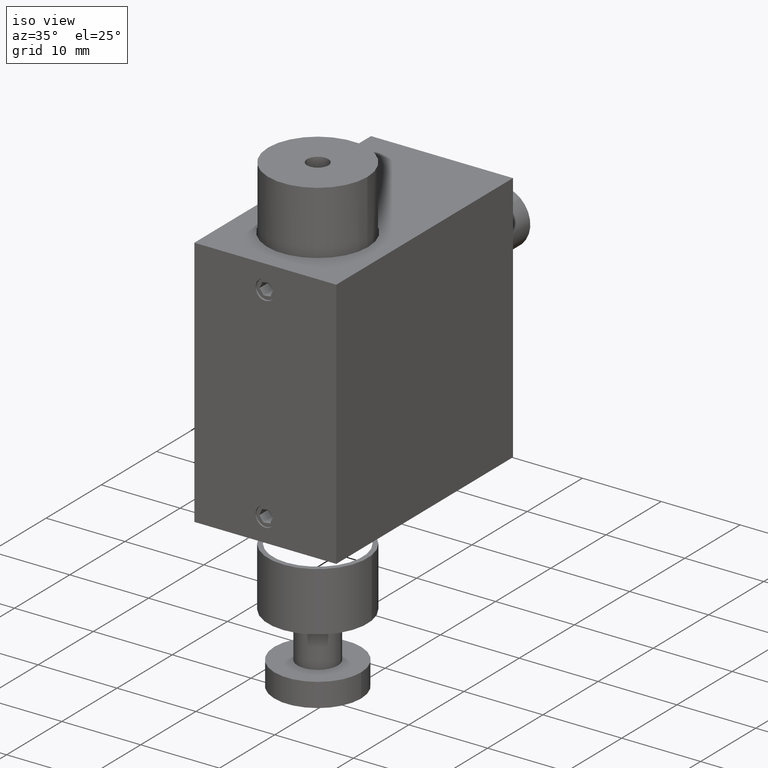
[diagram: clean part render]
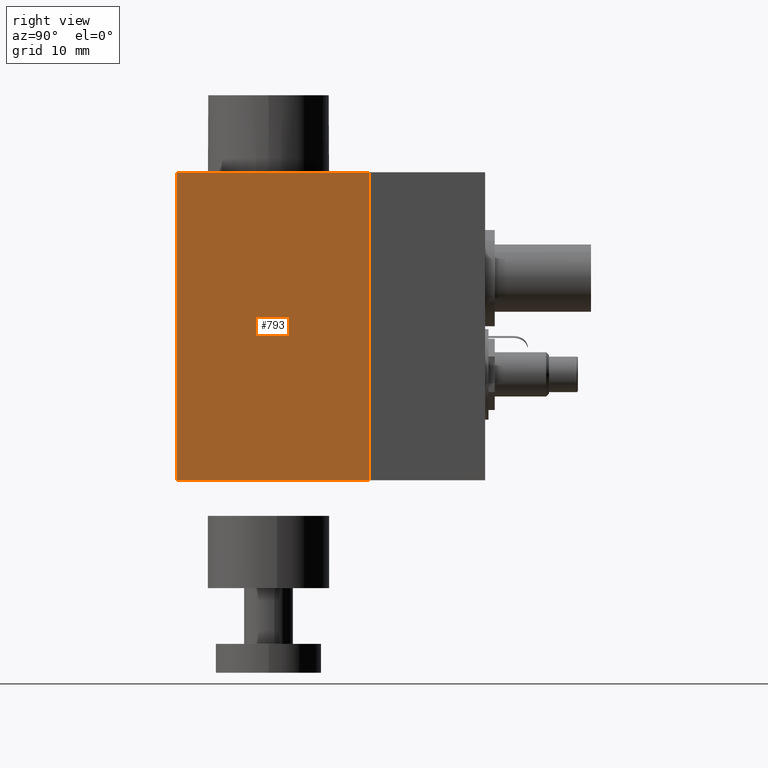
[diagram: tour spotlight — one face highlighted and labeled with its STEP entity id]
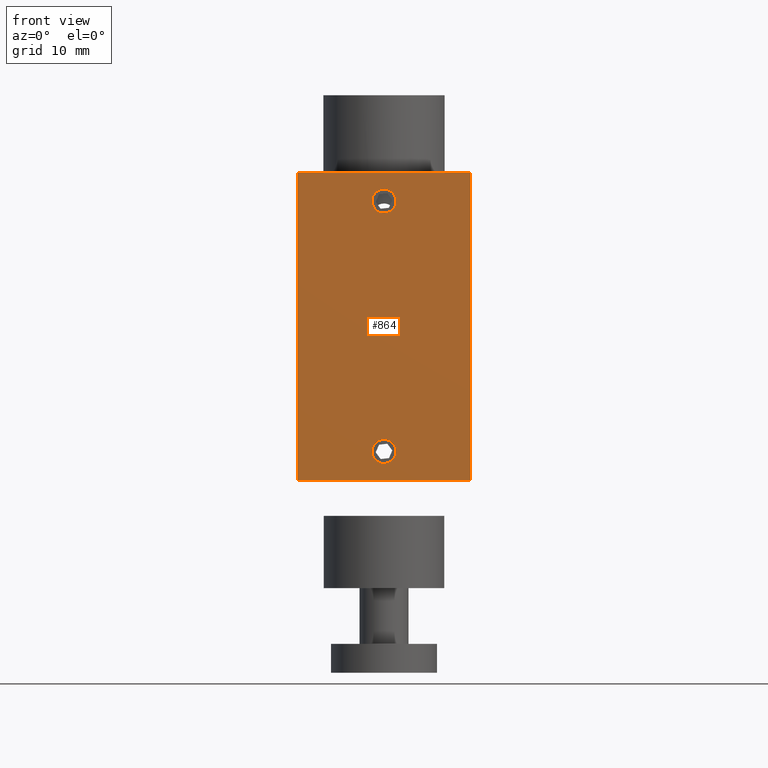
[diagram: tour spotlight — one face highlighted and labeled with its STEP entity id]
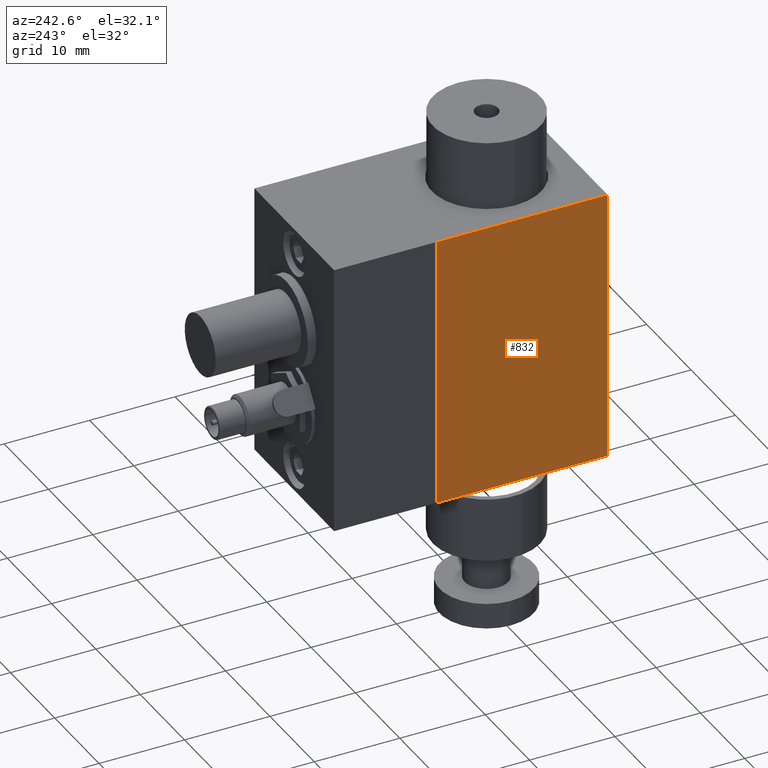
[diagram: tour spotlight — one face highlighted and labeled with its STEP entity id]
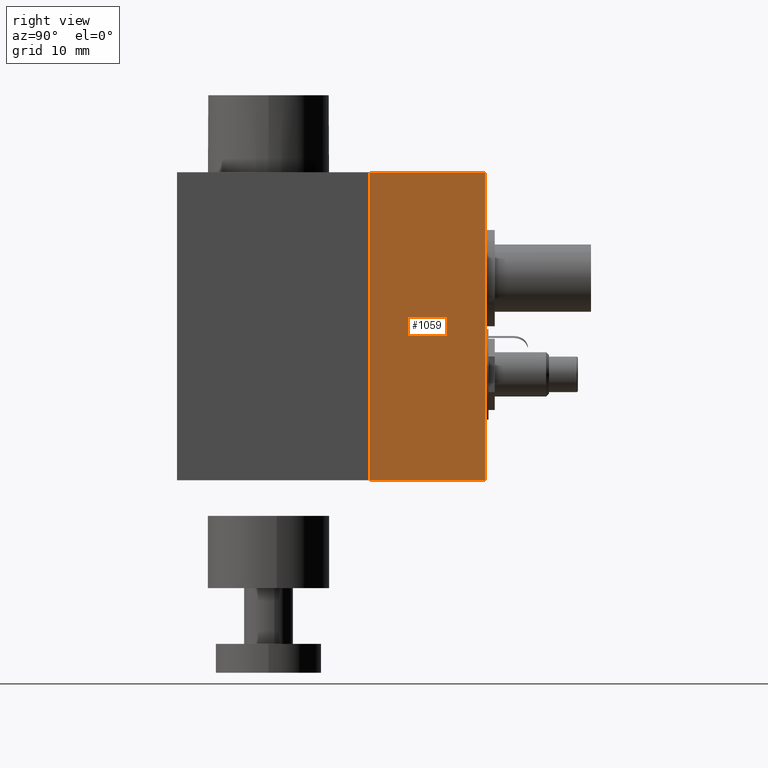
[diagram: tour spotlight — one face highlighted and labeled with its STEP entity id]
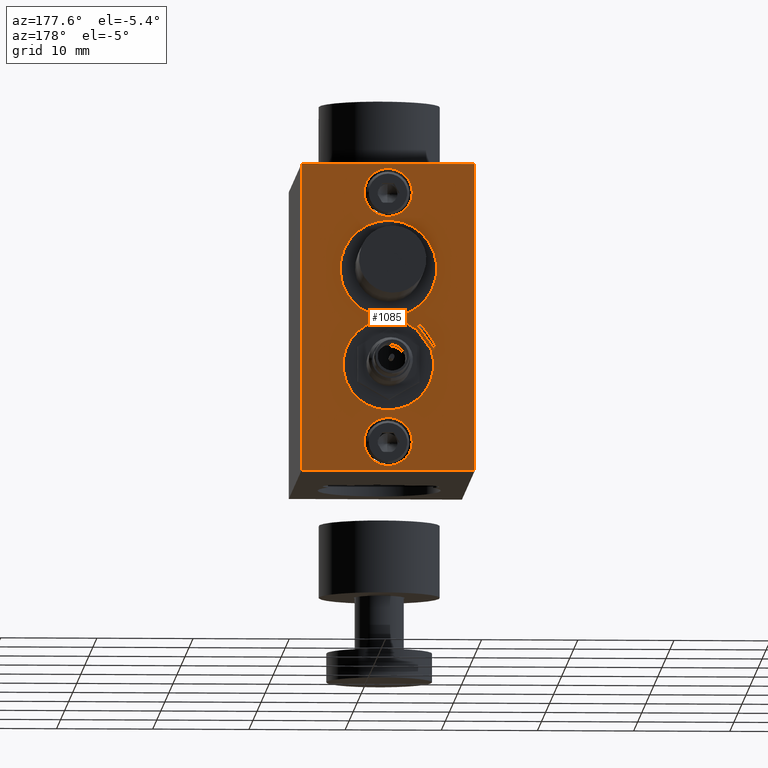
[diagram: tour spotlight — one face highlighted and labeled with its STEP entity id]
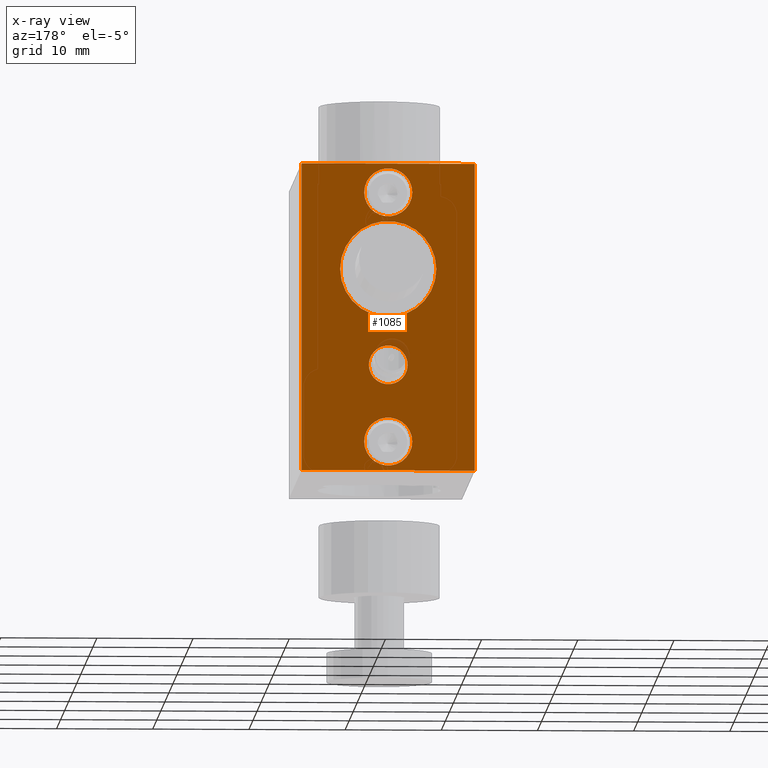
[diagram: x-ray of the same camera — body ghosted, this tour face saturated]
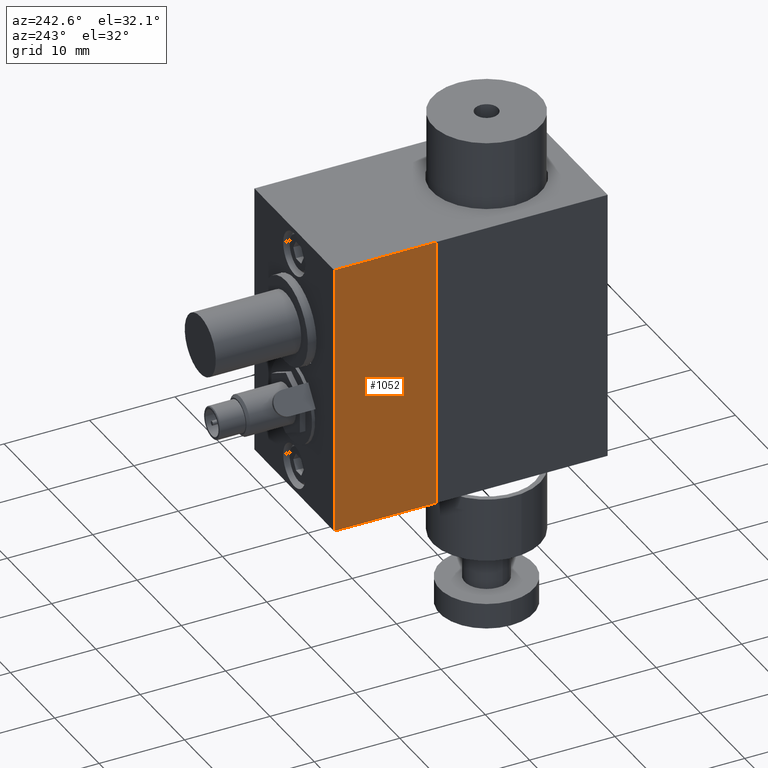
[diagram: tour spotlight — one face highlighted and labeled with its STEP entity id]
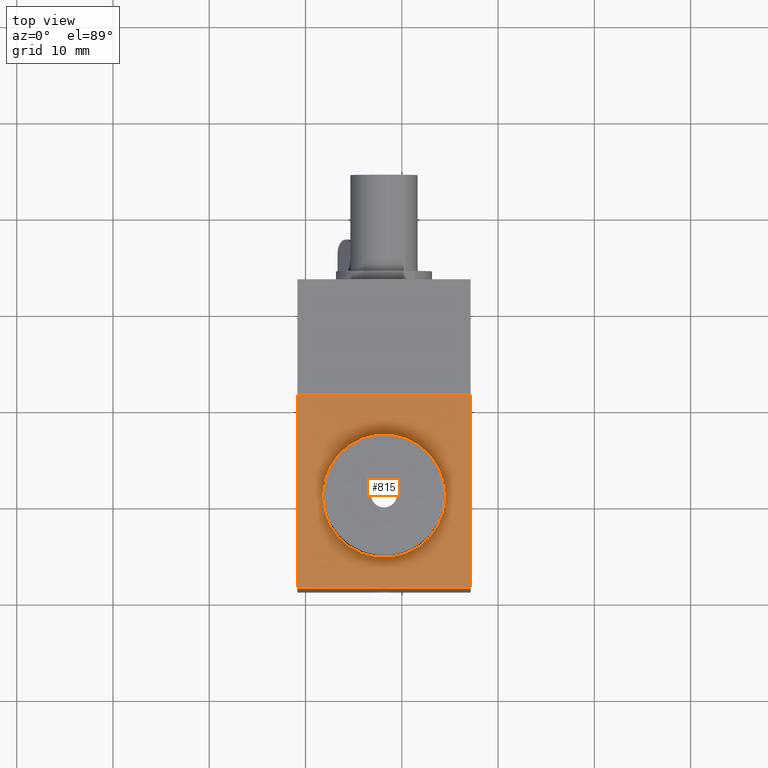
[diagram: tour spotlight — one face highlighted and labeled with its STEP entity id]
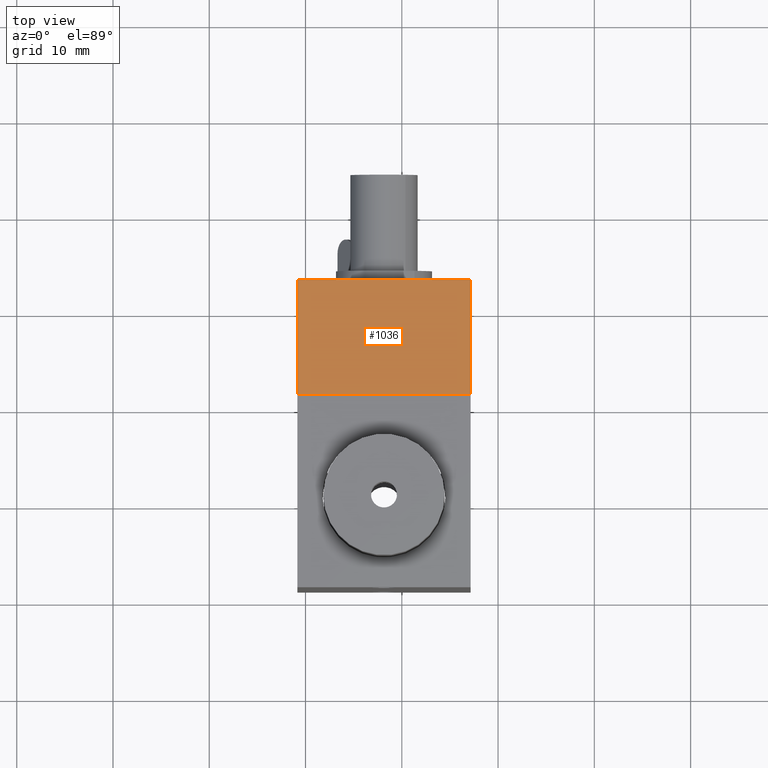
[diagram: tour spotlight — one face highlighted and labeled with its STEP entity id]
A machine part: a face-by-face anatomy tour. The part has 126 B-rep faces; the first image is the clean iso view, then the 8 largest visible faces are spotlighted one at a time (largest first), each with its STEP entity span.

Face 1 — right view, entity #793. In plain terms, the highlighted planar face has unit normal (1, 0, 0).
Definition (entity closure, byte-faithful):
#715 = ORIENTED_EDGE ( 'NONE', *, *, #716, .T. ) ;
#716 = EDGE_CURVE ( 'NONE', #801, #717, #3841, .T. ) ;
#717 = VERTEX_POINT ( 'NONE', #3837 ) ;
#718 = ORIENTED_EDGE ( 'NONE', *, *, #719, .T. ) ;
#719 = EDGE_CURVE ( 'NONE', #717, #798, #3884, .T. ) ;
#793 = ADVANCED_FACE ( 'NONE', ( #4084 ), #4068, .T. ) ;
#794 = EDGE_LOOP ( 'NONE', ( #795, #799, #715, #718 ) ) ;
#795 = ORIENTED_EDGE ( 'NONE', *, *, #796, .F. ) ;
#796 = EDGE_CURVE ( 'NONE', #797, #798, #4063, .T. ) ;
#797 = VERTEX_POINT ( 'NONE', #4059 ) ;
#798 = VERTEX_POINT ( 'NONE', #4058 ) ;
#799 = ORIENTED_EDGE ( 'NONE', *, *, #800, .F. ) ;
#800 = EDGE_CURVE ( 'NONE', #801, #797, #4118, .T. ) ;
#801 = VERTEX_POINT ( 'NONE', #4114 ) ;
#3837 = CARTESIAN_POINT ( 'NONE',  ( 7.151335311572692500, 10.93620178041543200, -39.99999999998499300 ) ) ;
#3838 = DIRECTION ( 'NONE',  ( -3.469446951953614200E-016, 1.000000000000000000, 0.0000000000000000000 ) ) ;
#3839 = VECTOR ( 'NONE', #3838, 1000.000000000000000 ) ;
#3840 = CARTESIAN_POINT ( 'NONE',  ( 7.151335311572692500, 10.93620178041543200, -39.99999999998499300 ) ) ;
#3841 = LINE ( 'NONE', #3840, #3839 ) ;
#3881 = DIRECTION ( 'NONE',  ( 0.0000000000000000000, 0.0000000000000000000, 1.000000000000000000 ) ) ;
#3882 = VECTOR ( 'NONE', #3881, 1000.000000000000000 ) ;
#3883 = CARTESIAN_POINT ( 'NONE',  ( 7.151335311572692500, 10.93620178041543200, -39.99999999998499300 ) ) ;
#3884 = LINE ( 'NONE', #3883, #3882 ) ;
#4058 = CARTESIAN_POINT ( 'NONE',  ( 7.151335311572692500, 10.93620178041543200, -7.999999999984993300 ) ) ;
#4059 = CARTESIAN_POINT ( 'NONE',  ( 7.151335311572699600, -9.063798219584569400, -7.999999999984993300 ) ) ;
#4060 = DIRECTION ( 'NONE',  ( -3.469446951953614200E-016, 1.000000000000000000, 0.0000000000000000000 ) ) ;
#4061 = VECTOR ( 'NONE', #4060, 1000.000000000000000 ) ;
#4062 = CARTESIAN_POINT ( 'NONE',  ( 7.151335311572692500, 10.93620178041543200, -7.999999999984993300 ) ) ;
#4063 = LINE ( 'NONE', #4062, #4061 ) ;
#4064 = DIRECTION ( 'NONE',  ( -3.469446951953614200E-016, 1.000000000000000000, 0.0000000000000000000 ) ) ;
#4065 = DIRECTION ( 'NONE',  ( 1.000000000000000000, 3.469446951953614200E-016, 0.0000000000000000000 ) ) ;
#4066 = CARTESIAN_POINT ( 'NONE',  ( 7.151335311572692500, 10.93620178041543200, -39.99999999998499300 ) ) ;
#4067 = AXIS2_PLACEMENT_3D ( 'NONE', #4066, #4065, #4064 ) ;
#4068 = PLANE ( 'NONE',  #4067 ) ;
#4084 = FACE_OUTER_BOUND ( 'NONE', #794, .T. ) ;
#4114 = CARTESIAN_POINT ( 'NONE',  ( 7.151335311572699600, -9.063798219584569400, -39.99999999998499300 ) ) ;
#4115 = DIRECTION ( 'NONE',  ( 0.0000000000000000000, 0.0000000000000000000, 1.000000000000000000 ) ) ;
#4116 = VECTOR ( 'NONE', #4115, 1000.000000000000000 ) ;
#4117 = CARTESIAN_POINT ( 'NONE',  ( 7.151335311572699600, -9.063798219584569400, -39.99999999998499300 ) ) ;
#4118 = LINE ( 'NONE', #4117, #4116 ) ;

Face 2 — front view, entity #864. In plain terms, the highlighted planar face has unit normal (0, -1, 0).
Definition (entity closure, byte-faithful):
#684 = VERTEX_POINT ( 'NONE', #3747 ) ;
#686 = EDGE_CURVE ( 'NONE', #684, #687, #3746, .T. ) ;
#687 = VERTEX_POINT ( 'NONE', #3741 ) ;
#752 = VERTEX_POINT ( 'NONE', #3932 ) ;
#754 = EDGE_CURVE ( 'NONE', #752, #755, #3931, .T. ) ;
#755 = VERTEX_POINT ( 'NONE', #3926 ) ;
#797 = VERTEX_POINT ( 'NONE', #4059 ) ;
#800 = EDGE_CURVE ( 'NONE', #801, #797, #4118, .T. ) ;
#801 = VERTEX_POINT ( 'NONE', #4114 ) ;
#809 = VERTEX_POINT ( 'NONE', #4108 ) ;
#814 = EDGE_CURVE ( 'NONE', #826, #809, #4102, .T. ) ;
#826 = VERTEX_POINT ( 'NONE', #4122 ) ;
#831 = EDGE_CURVE ( 'NONE', #826, #801, #4171, .T. ) ;
#849 = ORIENTED_EDGE ( 'NONE', *, *, #814, .F. ) ;
#850 = ORIENTED_EDGE ( 'NONE', *, *, #831, .T. ) ;
#851 = ORIENTED_EDGE ( 'NONE', *, *, #800, .T. ) ;
#863 = EDGE_CURVE ( 'NONE', #755, #752, #4281, .T. ) ;
#864 = ADVANCED_FACE ( 'NONE', ( #4276, #4275, #4274 ), #4319, .T. ) ;
#865 = EDGE_LOOP ( 'NONE', ( #866, #868 ) ) ;
#866 = ORIENTED_EDGE ( 'NONE', *, *, #867, .F. ) ;
#867 = EDGE_CURVE ( 'NONE', #687, #684, #4314, .T. ) ;
#868 = ORIENTED_EDGE ( 'NONE', *, *, #686, .F. ) ;
#869 = EDGE_LOOP ( 'NONE', ( #870, #871 ) ) ;
#870 = ORIENTED_EDGE ( 'NONE', *, *, #863, .F. ) ;
#871 = ORIENTED_EDGE ( 'NONE', *, *, #754, .F. ) ;
#872 = EDGE_LOOP ( 'NONE', ( #873, #849, #850, #851 ) ) ;
#873 = ORIENTED_EDGE ( 'NONE', *, *, #878, .F. ) ;
#878 = EDGE_CURVE ( 'NONE', #809, #797, #4309, .T. ) ;
#3741 = CARTESIAN_POINT ( 'NONE',  ( -1.848664688427299500, -9.063798219584571200, -12.24999999998497900 ) ) ;
#3742 = DIRECTION ( 'NONE',  ( 0.0000000000000000000, 0.0000000000000000000, -1.000000000000000000 ) ) ;
#3743 = DIRECTION ( 'NONE',  ( 0.0000000000000000000, -1.000000000000000000, 0.0000000000000000000 ) ) ;
#3744 = CARTESIAN_POINT ( 'NONE',  ( -1.848664688427299500, -9.063798219584571200, -10.99999999998499200 ) ) ;
#3745 = AXIS2_PLACEMENT_3D ( 'NONE', #3744, #3743, #3742 ) ;
#3746 = CIRCLE ( 'NONE', #3745, 1.249999999999987100 ) ;
#3747 = CARTESIAN_POINT ( 'NONE',  ( -1.848664688427299300, -9.063798219584571200, -9.749999999985005800 ) ) ;
#3926 = CARTESIAN_POINT ( 'NONE',  ( -1.848664688427290800, -9.063798219584571200, -38.24999999998497900 ) ) ;
#3927 = DIRECTION ( 'NONE',  ( 0.0000000000000000000, 0.0000000000000000000, -1.000000000000000000 ) ) ;
#3928 = DIRECTION ( 'NONE',  ( 0.0000000000000000000, -1.000000000000000000, 0.0000000000000000000 ) ) ;
#3929 = CARTESIAN_POINT ( 'NONE',  ( -1.848664688427290800, -9.063798219584571200, -36.99999999998498600 ) ) ;
#3930 = AXIS2_PLACEMENT_3D ( 'NONE', #3929, #3928, #3927 ) ;
#3931 = CIRCLE ( 'NONE', #3930, 1.249999999999987100 ) ;
#3932 = CARTESIAN_POINT ( 'NONE',  ( -1.848664688427290600, -9.063798219584571200, -35.74999999998500000 ) ) ;
#4059 = CARTESIAN_POINT ( 'NONE',  ( 7.151335311572699600, -9.063798219584569400, -7.999999999984993300 ) ) ;
#4099 = DIRECTION ( 'NONE',  ( 0.0000000000000000000, 0.0000000000000000000, 1.000000000000000000 ) ) ;
#4100 = VECTOR ( 'NONE', #4099, 1000.000000000000000 ) ;
#4101 = CARTESIAN_POINT ( 'NONE',  ( -10.84866468842730200, -9.063798219584569400, -39.99999999998499300 ) ) ;
#4102 = LINE ( 'NONE', #4101, #4100 ) ;
#4108 = CARTESIAN_POINT ( 'NONE',  ( -10.84866468842730200, -9.063798219584569400, -7.999999999984993300 ) ) ;
#4114 = CARTESIAN_POINT ( 'NONE',  ( 7.151335311572699600, -9.063798219584569400, -39.99999999998499300 ) ) ;
#4115 = DIRECTION ( 'NONE',  ( 0.0000000000000000000, 0.0000000000000000000, 1.000000000000000000 ) ) ;
#4116 = VECTOR ( 'NONE', #4115, 1000.000000000000000 ) ;
#4117 = CARTESIAN_POINT ( 'NONE',  ( 7.151335311572699600, -9.063798219584569400, -39.99999999998499300 ) ) ;
#4118 = LINE ( 'NONE', #4117, #4116 ) ;
#4122 = CARTESIAN_POINT ( 'NONE',  ( -10.84866468842730200, -9.063798219584569400, -39.99999999998499300 ) ) ;
#4168 = DIRECTION ( 'NONE',  ( 1.000000000000000000, 0.0000000000000000000, 0.0000000000000000000 ) ) ;
#4169 = VECTOR ( 'NONE', #4168, 1000.000000000000000 ) ;
#4170 = CARTESIAN_POINT ( 'NONE',  ( -10.84866468842730200, -9.063798219584569400, -39.99999999998499300 ) ) ;
#4171 = LINE ( 'NONE', #4170, #4169 ) ;
#4274 = FACE_OUTER_BOUND ( 'NONE', #872, .T. ) ;
#4275 = FACE_BOUND ( 'NONE', #869, .T. ) ;
#4276 = FACE_BOUND ( 'NONE', #865, .T. ) ;
#4277 = DIRECTION ( 'NONE',  ( 0.0000000000000000000, 0.0000000000000000000, -1.000000000000000000 ) ) ;
#4278 = DIRECTION ( 'NONE',  ( 0.0000000000000000000, -1.000000000000000000, 0.0000000000000000000 ) ) ;
#4279 = CARTESIAN_POINT ( 'NONE',  ( -1.848664688427290800, -9.063798219584571200, -36.99999999998498600 ) ) ;
#4280 = AXIS2_PLACEMENT_3D ( 'NONE', #4279, #4278, #4277 ) ;
#4281 = CIRCLE ( 'NONE', #4280, 1.249999999999987100 ) ;
#4306 = DIRECTION ( 'NONE',  ( 1.000000000000000000, 0.0000000000000000000, 0.0000000000000000000 ) ) ;
#4307 = VECTOR ( 'NONE', #4306, 1000.000000000000000 ) ;
#4308 = CARTESIAN_POINT ( 'NONE',  ( -10.84866468842730200, -9.063798219584569400, -7.999999999984993300 ) ) ;
#4309 = LINE ( 'NONE', #4308, #4307 ) ;
#4310 = DIRECTION ( 'NONE',  ( 0.0000000000000000000, 0.0000000000000000000, -1.000000000000000000 ) ) ;
#4311 = DIRECTION ( 'NONE',  ( 0.0000000000000000000, -1.000000000000000000, 0.0000000000000000000 ) ) ;
#4312 = CARTESIAN_POINT ( 'NONE',  ( -1.848664688427299500, -9.063798219584571200, -10.99999999998499200 ) ) ;
#4313 = AXIS2_PLACEMENT_3D ( 'NONE', #4312, #4311, #4310 ) ;
#4314 = CIRCLE ( 'NONE', #4313, 1.249999999999987100 ) ;
#4315 = DIRECTION ( 'NONE',  ( 0.0000000000000000000, 0.0000000000000000000, -1.000000000000000000 ) ) ;
#4316 = DIRECTION ( 'NONE',  ( 0.0000000000000000000, -1.000000000000000000, 0.0000000000000000000 ) ) ;
#4317 = CARTESIAN_POINT ( 'NONE',  ( -10.84866468842730200, -9.063798219584569400, -39.99999999998499300 ) ) ;
#4318 = AXIS2_PLACEMENT_3D ( 'NONE', #4317, #4316, #4315 ) ;
#4319 = PLANE ( 'NONE',  #4318 ) ;

Face 3 — auxiliary view, entity #832. In plain terms, the highlighted planar face has unit normal (-1, -0, 0).
Definition (entity closure, byte-faithful):
#806 = ORIENTED_EDGE ( 'NONE', *, *, #807, .F. ) ;
#807 = EDGE_CURVE ( 'NONE', #808, #809, #4113, .T. ) ;
#808 = VERTEX_POINT ( 'NONE', #4109 ) ;
#809 = VERTEX_POINT ( 'NONE', #4108 ) ;
#810 = ORIENTED_EDGE ( 'NONE', *, *, #811, .F. ) ;
#811 = EDGE_CURVE ( 'NONE', #825, #808, #4107, .T. ) ;
#812 = ORIENTED_EDGE ( 'NONE', *, *, #824, .T. ) ;
#813 = ORIENTED_EDGE ( 'NONE', *, *, #814, .T. ) ;
#814 = EDGE_CURVE ( 'NONE', #826, #809, #4102, .T. ) ;
#824 = EDGE_CURVE ( 'NONE', #825, #826, #4127, .T. ) ;
#825 = VERTEX_POINT ( 'NONE', #4123 ) ;
#826 = VERTEX_POINT ( 'NONE', #4122 ) ;
#832 = ADVANCED_FACE ( 'NONE', ( #4167 ), #4152, .T. ) ;
#833 = EDGE_LOOP ( 'NONE', ( #806, #810, #812, #813 ) ) ;
#4099 = DIRECTION ( 'NONE',  ( 0.0000000000000000000, 0.0000000000000000000, 1.000000000000000000 ) ) ;
#4100 = VECTOR ( 'NONE', #4099, 1000.000000000000000 ) ;
#4101 = CARTESIAN_POINT ( 'NONE',  ( -10.84866468842730200, -9.063798219584569400, -39.99999999998499300 ) ) ;
#4102 = LINE ( 'NONE', #4101, #4100 ) ;
#4104 = DIRECTION ( 'NONE',  ( 0.0000000000000000000, 0.0000000000000000000, 1.000000000000000000 ) ) ;
#4105 = VECTOR ( 'NONE', #4104, 1000.000000000000000 ) ;
#4106 = CARTESIAN_POINT ( 'NONE',  ( -10.84866468842730200, 10.93620178041543200, -39.99999999998499300 ) ) ;
#4107 = LINE ( 'NONE', #4106, #4105 ) ;
#4108 = CARTESIAN_POINT ( 'NONE',  ( -10.84866468842730200, -9.063798219584569400, -7.999999999984993300 ) ) ;
#4109 = CARTESIAN_POINT ( 'NONE',  ( -10.84866468842730200, 10.93620178041543200, -7.999999999984993300 ) ) ;
#4110 = DIRECTION ( 'NONE',  ( 1.224606353822377400E-017, -1.000000000000000000, 0.0000000000000000000 ) ) ;
#4111 = VECTOR ( 'NONE', #4110, 1000.000000000000000 ) ;
#4112 = CARTESIAN_POINT ( 'NONE',  ( -10.84866468842730200, 10.93620178041543200, -7.999999999984993300 ) ) ;
#4113 = LINE ( 'NONE', #4112, #4111 ) ;
#4122 = CARTESIAN_POINT ( 'NONE',  ( -10.84866468842730200, -9.063798219584569400, -39.99999999998499300 ) ) ;
#4123 = CARTESIAN_POINT ( 'NONE',  ( -10.84866468842730200, 10.93620178041543200, -39.99999999998499300 ) ) ;
#4124 = DIRECTION ( 'NONE',  ( 1.224606353822377400E-017, -1.000000000000000000, 0.0000000000000000000 ) ) ;
#4125 = VECTOR ( 'NONE', #4124, 1000.000000000000000 ) ;
#4126 = CARTESIAN_POINT ( 'NONE',  ( -10.84866468842730200, 10.93620178041543200, -39.99999999998499300 ) ) ;
#4127 = LINE ( 'NONE', #4126, #4125 ) ;
#4148 = DIRECTION ( 'NONE',  ( 1.224606353822377400E-017, -1.000000000000000000, 0.0000000000000000000 ) ) ;
#4149 = DIRECTION ( 'NONE',  ( -1.000000000000000000, -1.224606353822377400E-017, 0.0000000000000000000 ) ) ;
#4150 = CARTESIAN_POINT ( 'NONE',  ( -10.84866468842730200, 10.93620178041543200, -39.99999999998499300 ) ) ;
#4151 = AXIS2_PLACEMENT_3D ( 'NONE', #4150, #4149, #4148 ) ;
#4152 = PLANE ( 'NONE',  #4151 ) ;
#4167 = FACE_OUTER_BOUND ( 'NONE', #833, .T. ) ;

Face 4 — right view, entity #1059. In plain terms, the highlighted planar face has unit normal (1, -0, 0).
Definition (entity closure, byte-faithful):
#988 = VERTEX_POINT ( 'NONE', #4718 ) ;
#991 = EDGE_CURVE ( 'NONE', #992, #988, #4716, .T. ) ;
#992 = VERTEX_POINT ( 'NONE', #4712 ) ;
#1040 = VERTEX_POINT ( 'NONE', #4853 ) ;
#1044 = VERTEX_POINT ( 'NONE', #4848 ) ;
#1046 = EDGE_CURVE ( 'NONE', #1044, #1040, #4847, .T. ) ;
#1059 = ADVANCED_FACE ( 'NONE', ( #4901 ), #4941, .T. ) ;
#1060 = EDGE_LOOP ( 'NONE', ( #1061, #1062, #1063, #1065 ) ) ;
#1061 = ORIENTED_EDGE ( 'NONE', *, *, #1081, .F. ) ;
#1062 = ORIENTED_EDGE ( 'NONE', *, *, #1046, .F. ) ;
#1063 = ORIENTED_EDGE ( 'NONE', *, *, #1064, .T. ) ;
#1064 = EDGE_CURVE ( 'NONE', #1044, #992, #4935, .T. ) ;
#1065 = ORIENTED_EDGE ( 'NONE', *, *, #991, .T. ) ;
#1081 = EDGE_CURVE ( 'NONE', #1040, #988, #4968, .T. ) ;
#4712 = CARTESIAN_POINT ( 'NONE',  ( 7.151335311572699600, 10.93620178041543100, -39.99999999998499300 ) ) ;
#4713 = DIRECTION ( 'NONE',  ( 1.040834085586084300E-017, 1.000000000000000000, -1.646463124818806800E-017 ) ) ;
#4714 = VECTOR ( 'NONE', #4713, 1000.000000000000000 ) ;
#4715 = CARTESIAN_POINT ( 'NONE',  ( 7.151335311572699600, 10.93620178041543100, -39.99999999998499300 ) ) ;
#4716 = LINE ( 'NONE', #4715, #4714 ) ;
#4718 = CARTESIAN_POINT ( 'NONE',  ( 7.151335311572699600, 22.93620178041543100, -39.99999999998499300 ) ) ;
#4844 = DIRECTION ( 'NONE',  ( 1.040834085586084300E-017, 1.000000000000000000, -1.646463124818806800E-017 ) ) ;
#4845 = VECTOR ( 'NONE', #4844, 1000.000000000000000 ) ;
#4846 = CARTESIAN_POINT ( 'NONE',  ( 7.151335311572697900, 10.93620178041543100, -7.999999999985004900 ) ) ;
#4847 = LINE ( 'NONE', #4846, #4845 ) ;
#4848 = CARTESIAN_POINT ( 'NONE',  ( 7.151335311572697900, 10.93620178041543100, -7.999999999985004900 ) ) ;
#4853 = CARTESIAN_POINT ( 'NONE',  ( 7.151335311572697900, 22.93620178041543100, -7.999999999985004900 ) ) ;
#4901 = FACE_OUTER_BOUND ( 'NONE', #1060, .T. ) ;
#4932 = DIRECTION ( 'NONE',  ( 6.346426841148801000E-017, -1.646463124818758700E-017, -1.000000000000000000 ) ) ;
#4933 = VECTOR ( 'NONE', #4932, 1000.000000000000000 ) ;
#4934 = CARTESIAN_POINT ( 'NONE',  ( 7.151335311572697900, 10.93620178041543100, -7.999999999985004900 ) ) ;
#4935 = LINE ( 'NONE', #4934, #4933 ) ;
#4937 = DIRECTION ( 'NONE',  ( 6.346426841148801000E-017, -1.646463124818758700E-017, -1.000000000000000000 ) ) ;
#4938 = DIRECTION ( 'NONE',  ( 1.000000000000000000, -1.040834085586084300E-017, 6.346426841148801000E-017 ) ) ;
#4939 = CARTESIAN_POINT ( 'NONE',  ( 7.151335311572697900, 10.93620178041543100, -7.999999999985004900 ) ) ;
#4940 = AXIS2_PLACEMENT_3D ( 'NONE', #4939, #4938, #4937 ) ;
#4941 = PLANE ( 'NONE',  #4940 ) ;
#4965 = DIRECTION ( 'NONE',  ( 6.346426841148801000E-017, -1.646463124818758700E-017, -1.000000000000000000 ) ) ;
#4966 = VECTOR ( 'NONE', #4965, 1000.000000000000000 ) ;
#4967 = CARTESIAN_POINT ( 'NONE',  ( 7.151335311572697900, 22.93620178041543100, -7.999999999985004900 ) ) ;
#4968 = LINE ( 'NONE', #4967, #4966 ) ;

Face 5 — auxiliary view, entity #1085. An x-ray twin of the same camera follows (body ghosted, this face saturated) — the face is partly hidden behind the body. In plain terms, the highlighted planar face has unit normal (0, 1, -0).
Definition (entity closure, byte-faithful):
#587 = VERTEX_POINT ( 'NONE', #3360 ) ;
#972 = EDGE_CURVE ( 'NONE', #989, #973, #4599, .T. ) ;
#973 = VERTEX_POINT ( 'NONE', #4652 ) ;
#980 = EDGE_CURVE ( 'NONE', #1008, #981, #4624, .T. ) ;
#981 = VERTEX_POINT ( 'NONE', #4619 ) ;
#987 = EDGE_CURVE ( 'NONE', #988, #989, #4659, .T. ) ;
#988 = VERTEX_POINT ( 'NONE', #4718 ) ;
#989 = VERTEX_POINT ( 'NONE', #4717 ) ;
#995 = VERTEX_POINT ( 'NONE', #4707 ) ;
#997 = EDGE_CURVE ( 'NONE', #995, #998, #4706, .T. ) ;
#998 = VERTEX_POINT ( 'NONE', #4701 ) ;
#1008 = VERTEX_POINT ( 'NONE', #4728 ) ;
#1013 = VERTEX_POINT ( 'NONE', #4720 ) ;
#1014 = VERTEX_POINT ( 'NONE', #4719 ) ;
#1015 = ORIENTED_EDGE ( 'NONE', *, *, #1016, .F. ) ;
#1016 = EDGE_CURVE ( 'NONE', #1014, #1013, #4771, .T. ) ;
#1017 = EDGE_LOOP ( 'NONE', ( #1018, #1070 ) ) ;
#1018 = ORIENTED_EDGE ( 'NONE', *, *, #1019, .F. ) ;
#1019 = EDGE_CURVE ( 'NONE', #1020, #587, #4766, .T. ) ;
#1020 = VERTEX_POINT ( 'NONE', #4762 ) ;
#1028 = EDGE_CURVE ( 'NONE', #981, #1008, #4793, .T. ) ;
#1039 = EDGE_CURVE ( 'NONE', #973, #1040, #4857, .T. ) ;
#1040 = VERTEX_POINT ( 'NONE', #4853 ) ;
#1057 = ORIENTED_EDGE ( 'NONE', *, *, #987, .T. ) ;
#1058 = ORIENTED_EDGE ( 'NONE', *, *, #972, .T. ) ;
#1070 = ORIENTED_EDGE ( 'NONE', *, *, #1071, .F. ) ;
#1071 = EDGE_CURVE ( 'NONE', #587, #1020, #4973, .T. ) ;
#1072 = EDGE_LOOP ( 'NONE', ( #1073, #1074 ) ) ;
#1073 = ORIENTED_EDGE ( 'NONE', *, *, #1084, .F. ) ;
#1074 = ORIENTED_EDGE ( 'NONE', *, *, #997, .F. ) ;
#1075 = EDGE_LOOP ( 'NONE', ( #1076, #1077 ) ) ;
#1076 = ORIENTED_EDGE ( 'NONE', *, *, #1028, .F. ) ;
#1077 = ORIENTED_EDGE ( 'NONE', *, *, #980, .F. ) ;
#1078 = EDGE_LOOP ( 'NONE', ( #1079, #1080, #1057, #1058 ) ) ;
#1079 = ORIENTED_EDGE ( 'NONE', *, *, #1039, .T. ) ;
#1080 = ORIENTED_EDGE ( 'NONE', *, *, #1081, .T. ) ;
#1081 = EDGE_CURVE ( 'NONE', #1040, #988, #4968, .T. ) ;
#1084 = EDGE_CURVE ( 'NONE', #998, #995, #4963, .T. ) ;
#1085 = ADVANCED_FACE ( 'NONE', ( #4958, #4957, #4956, #4955, #4954 ), #4996, .T. ) ;
#1086 = EDGE_LOOP ( 'NONE', ( #1087, #1015 ) ) ;
#1087 = ORIENTED_EDGE ( 'NONE', *, *, #1088, .F. ) ;
#1088 = EDGE_CURVE ( 'NONE', #1013, #1014, #4991, .T. ) ;
#3360 = CARTESIAN_POINT ( 'NONE',  ( -6.848664688427304800, 22.93620178041543100, -18.99999999998500000 ) ) ;
#4599 = LINE ( 'NONE', #4655, #4654 ) ;
#4619 = CARTESIAN_POINT ( 'NONE',  ( 0.6513353115726993000, 22.93620178041543100, -36.99999999998499300 ) ) ;
#4620 = DIRECTION ( 'NONE',  ( 1.000000000000000000, 0.0000000000000000000, 0.0000000000000000000 ) ) ;
#4621 = DIRECTION ( 'NONE',  ( 1.040834085586084300E-017, 1.000000000000000000, -1.646463124818806800E-017 ) ) ;
#4622 = CARTESIAN_POINT ( 'NONE',  ( -1.848664688427301300, 22.93620178041543100, -36.99999999998499300 ) ) ;
#4623 = AXIS2_PLACEMENT_3D ( 'NONE', #4622, #4621, #4620 ) ;
#4624 = CIRCLE ( 'NONE', #4623, 2.500000000000000400 ) ;
#4652 = CARTESIAN_POINT ( 'NONE',  ( -10.84866468842730000, 22.93620178041543100, -7.999999999984998700 ) ) ;
#4653 = DIRECTION ( 'NONE',  ( -6.346426841148801000E-017, 1.646463124818758700E-017, 1.000000000000000000 ) ) ;
#4654 = VECTOR ( 'NONE', #4653, 1000.000000000000000 ) ;
#4655 = CARTESIAN_POINT ( 'NONE',  ( -10.84866468842730000, 22.93620178041543100, -7.999999999984998700 ) ) ;
#4656 = DIRECTION ( 'NONE',  ( -1.000000000000000000, 1.040834085586083900E-017, -2.562113212977998800E-016 ) ) ;
#4657 = VECTOR ( 'NONE', #4656, 1000.000000000000000 ) ;
#4658 = CARTESIAN_POINT ( 'NONE',  ( -10.84866468842729900, 22.93620178041543100, -39.99999999998500000 ) ) ;
#4659 = LINE ( 'NONE', #4658, #4657 ) ;
#4701 = CARTESIAN_POINT ( 'NONE',  ( 0.6513353115726976400, 22.93620178041543100, -10.99999999998499700 ) ) ;
#4702 = DIRECTION ( 'NONE',  ( 1.000000000000000000, 0.0000000000000000000, 0.0000000000000000000 ) ) ;
#4703 = DIRECTION ( 'NONE',  ( 1.040834085586084300E-017, 1.000000000000000000, -1.646463124818806800E-017 ) ) ;
#4704 = CARTESIAN_POINT ( 'NONE',  ( -1.848664688427301300, 22.93620178041543100, -10.99999999998499700 ) ) ;
#4705 = AXIS2_PLACEMENT_3D ( 'NONE', #4704, #4703, #4702 ) ;
#4706 = CIRCLE ( 'NONE', #4705, 2.499999999999998700 ) ;
#4707 = CARTESIAN_POINT ( 'NONE',  ( -4.348664688427299500, 22.93620178041543100, -10.99999999998499700 ) ) ;
#4717 = CARTESIAN_POINT ( 'NONE',  ( -10.84866468842729900, 22.93620178041543100, -39.99999999998500000 ) ) ;
#4718 = CARTESIAN_POINT ( 'NONE',  ( 7.151335311572699600, 22.93620178041543100, -39.99999999998499300 ) ) ;
#4719 = CARTESIAN_POINT ( 'NONE',  ( -3.867964688427289100, 22.93620178041543100, -28.99999999998500000 ) ) ;
#4720 = CARTESIAN_POINT ( 'NONE',  ( 0.1706353115726987900, 22.93620178041543100, -28.99999999998500000 ) ) ;
#4728 = CARTESIAN_POINT ( 'NONE',  ( -4.348664688427301300, 22.93620178041543100, -36.99999999998499300 ) ) ;
#4762 = CARTESIAN_POINT ( 'NONE',  ( 3.151335311572697400, 22.93620178041543100, -18.99999999998500000 ) ) ;
#4763 = DIRECTION ( 'NONE',  ( 1.000000000000000000, 0.0000000000000000000, 0.0000000000000000000 ) ) ;
#4764 = DIRECTION ( 'NONE',  ( 1.040834085586084300E-017, 1.000000000000000000, -1.646463124818806800E-017 ) ) ;
#4765 = AXIS2_PLACEMENT_3D ( 'NONE', #4772, #4764, #4763 ) ;
#4766 = CIRCLE ( 'NONE', #4765, 5.000000000000000900 ) ;
#4767 = DIRECTION ( 'NONE',  ( 1.000000000000000000, 0.0000000000000000000, 0.0000000000000000000 ) ) ;
#4768 = DIRECTION ( 'NONE',  ( 1.040834085586084300E-017, 1.000000000000000000, -1.646463124818806800E-017 ) ) ;
#4769 = CARTESIAN_POINT ( 'NONE',  ( -1.848664688427295000, 22.93620178041543100, -28.99999999998500000 ) ) ;
#4770 = AXIS2_PLACEMENT_3D ( 'NONE', #4769, #4768, #4767 ) ;
#4771 = CIRCLE ( 'NONE', #4770, 2.019299999999993700 ) ;
#4772 = CARTESIAN_POINT ( 'NONE',  ( -1.848664688427303700, 22.93620178041543100, -18.99999999998500000 ) ) ;
#4789 = DIRECTION ( 'NONE',  ( 1.000000000000000000, 0.0000000000000000000, 0.0000000000000000000 ) ) ;
#4790 = DIRECTION ( 'NONE',  ( 1.040834085586084300E-017, 1.000000000000000000, -1.646463124818806800E-017 ) ) ;
#4791 = CARTESIAN_POINT ( 'NONE',  ( -1.848664688427301300, 22.93620178041543100, -36.99999999998499300 ) ) ;
#4792 = AXIS2_PLACEMENT_3D ( 'NONE', #4791, #4790, #4789 ) ;
#4793 = CIRCLE ( 'NONE', #4792, 2.500000000000000400 ) ;
#4853 = CARTESIAN_POINT ( 'NONE',  ( 7.151335311572697900, 22.93620178041543100, -7.999999999985004900 ) ) ;
#4854 = DIRECTION ( 'NONE',  ( 1.000000000000000000, -1.040834085586084900E-017, -3.220298373611357900E-016 ) ) ;
#4855 = VECTOR ( 'NONE', #4854, 1000.000000000000000 ) ;
#4856 = CARTESIAN_POINT ( 'NONE',  ( -10.84866468842730000, 22.93620178041543100, -7.999999999984998700 ) ) ;
#4857 = LINE ( 'NONE', #4856, #4855 ) ;
#4954 = FACE_OUTER_BOUND ( 'NONE', #1078, .T. ) ;
#4955 = FACE_BOUND ( 'NONE', #1075, .T. ) ;
#4956 = FACE_BOUND ( 'NONE', #1072, .T. ) ;
#4957 = FACE_BOUND ( 'NONE', #1017, .T. ) ;
#4958 = FACE_BOUND ( 'NONE', #1086, .T. ) ;
#4959 = DIRECTION ( 'NONE',  ( 1.000000000000000000, 0.0000000000000000000, 0.0000000000000000000 ) ) ;
#4960 = DIRECTION ( 'NONE',  ( 1.040834085586084300E-017, 1.000000000000000000, -1.646463124818806800E-017 ) ) ;
#4961 = CARTESIAN_POINT ( 'NONE',  ( -1.848664688427301300, 22.93620178041543100, -10.99999999998499700 ) ) ;
#4962 = AXIS2_PLACEMENT_3D ( 'NONE', #4961, #4960, #4959 ) ;
#4963 = CIRCLE ( 'NONE', #4962, 2.499999999999998700 ) ;
#4965 = DIRECTION ( 'NONE',  ( 6.346426841148801000E-017, -1.646463124818758700E-017, -1.000000000000000000 ) ) ;
#4966 = VECTOR ( 'NONE', #4965, 1000.000000000000000 ) ;
#4967 = CARTESIAN_POINT ( 'NONE',  ( 7.151335311572697900, 22.93620178041543100, -7.999999999985004900 ) ) ;
#4968 = LINE ( 'NONE', #4967, #4966 ) ;
#4969 = DIRECTION ( 'NONE',  ( 1.000000000000000000, 0.0000000000000000000, 0.0000000000000000000 ) ) ;
#4970 = DIRECTION ( 'NONE',  ( 1.040834085586084300E-017, 1.000000000000000000, -1.646463124818806800E-017 ) ) ;
#4971 = CARTESIAN_POINT ( 'NONE',  ( -1.848664688427303700, 22.93620178041543100, -18.99999999998500000 ) ) ;
#4972 = AXIS2_PLACEMENT_3D ( 'NONE', #4971, #4970, #4969 ) ;
#4973 = CIRCLE ( 'NONE', #4972, 5.000000000000000900 ) ;
#4987 = DIRECTION ( 'NONE',  ( 1.000000000000000000, 0.0000000000000000000, 0.0000000000000000000 ) ) ;
#4988 = DIRECTION ( 'NONE',  ( 1.040834085586084300E-017, 1.000000000000000000, -1.646463124818806800E-017 ) ) ;
#4989 = CARTESIAN_POINT ( 'NONE',  ( -1.848664688427295000, 22.93620178041543100, -28.99999999998500000 ) ) ;
#4990 = AXIS2_PLACEMENT_3D ( 'NONE', #4989, #4988, #4987 ) ;
#4991 = CIRCLE ( 'NONE', #4990, 2.019299999999993700 ) ;
#4992 = DIRECTION ( 'NONE',  ( 1.000000000000000000, -1.040834085586084300E-017, 6.346426841148799700E-017 ) ) ;
#4993 = DIRECTION ( 'NONE',  ( 1.040834085586084400E-017, 1.000000000000000000, -1.646463124818806800E-017 ) ) ;
#4994 = CARTESIAN_POINT ( 'NONE',  ( 7.151335311572697900, 22.93620178041543100, -7.999999999985004900 ) ) ;
#4995 = AXIS2_PLACEMENT_3D ( 'NONE', #4994, #4993, #4992 ) ;
#4996 = PLANE ( 'NONE',  #4995 ) ;

Face 6 — auxiliary view, entity #1052. In plain terms, the highlighted planar face has unit normal (-1, 0, -0).
Definition (entity closure, byte-faithful):
#970 = EDGE_LOOP ( 'NONE', ( #971, #974, #975, #1034 ) ) ;
#971 = ORIENTED_EDGE ( 'NONE', *, *, #972, .F. ) ;
#972 = EDGE_CURVE ( 'NONE', #989, #973, #4599, .T. ) ;
#973 = VERTEX_POINT ( 'NONE', #4652 ) ;
#974 = ORIENTED_EDGE ( 'NONE', *, *, #1051, .F. ) ;
#975 = ORIENTED_EDGE ( 'NONE', *, *, #976, .T. ) ;
#976 = EDGE_CURVE ( 'NONE', #1049, #977, #4633, .T. ) ;
#977 = VERTEX_POINT ( 'NONE', #4629 ) ;
#989 = VERTEX_POINT ( 'NONE', #4717 ) ;
#1034 = ORIENTED_EDGE ( 'NONE', *, *, #1035, .T. ) ;
#1035 = EDGE_CURVE ( 'NONE', #977, #973, #4818, .T. ) ;
#1049 = VERTEX_POINT ( 'NONE', #4839 ) ;
#1051 = EDGE_CURVE ( 'NONE', #1049, #989, #4837, .T. ) ;
#1052 = ADVANCED_FACE ( 'NONE', ( #4833 ), #4879, .T. ) ;
#4599 = LINE ( 'NONE', #4655, #4654 ) ;
#4629 = CARTESIAN_POINT ( 'NONE',  ( -10.84866468842730000, 10.93620178041543100, -7.999999999984998700 ) ) ;
#4630 = DIRECTION ( 'NONE',  ( -6.346426841148801000E-017, 1.646463124818758700E-017, 1.000000000000000000 ) ) ;
#4631 = VECTOR ( 'NONE', #4630, 1000.000000000000000 ) ;
#4632 = CARTESIAN_POINT ( 'NONE',  ( -10.84866468842730000, 10.93620178041543100, -7.999999999984998700 ) ) ;
#4633 = LINE ( 'NONE', #4632, #4631 ) ;
#4652 = CARTESIAN_POINT ( 'NONE',  ( -10.84866468842730000, 22.93620178041543100, -7.999999999984998700 ) ) ;
#4653 = DIRECTION ( 'NONE',  ( -6.346426841148801000E-017, 1.646463124818758700E-017, 1.000000000000000000 ) ) ;
#4654 = VECTOR ( 'NONE', #4653, 1000.000000000000000 ) ;
#4655 = CARTESIAN_POINT ( 'NONE',  ( -10.84866468842730000, 22.93620178041543100, -7.999999999984998700 ) ) ;
#4717 = CARTESIAN_POINT ( 'NONE',  ( -10.84866468842729900, 22.93620178041543100, -39.99999999998500000 ) ) ;
#4815 = DIRECTION ( 'NONE',  ( 1.040834085586084300E-017, 1.000000000000000000, -1.646463124818806800E-017 ) ) ;
#4816 = VECTOR ( 'NONE', #4815, 1000.000000000000000 ) ;
#4817 = CARTESIAN_POINT ( 'NONE',  ( -10.84866468842730000, 10.93620178041543100, -7.999999999984998700 ) ) ;
#4818 = LINE ( 'NONE', #4817, #4816 ) ;
#4833 = FACE_OUTER_BOUND ( 'NONE', #970, .T. ) ;
#4834 = DIRECTION ( 'NONE',  ( 1.040834085586084300E-017, 1.000000000000000000, -1.646463124818806800E-017 ) ) ;
#4835 = VECTOR ( 'NONE', #4834, 1000.000000000000000 ) ;
#4836 = CARTESIAN_POINT ( 'NONE',  ( -10.84866468842729900, 10.93620178041543100, -39.99999999998500000 ) ) ;
#4837 = LINE ( 'NONE', #4836, #4835 ) ;
#4839 = CARTESIAN_POINT ( 'NONE',  ( -10.84866468842729900, 10.93620178041543100, -39.99999999998500000 ) ) ;
#4874 = DIRECTION ( 'NONE',  ( -6.346426841148801000E-017, 1.646463124818758700E-017, 1.000000000000000000 ) ) ;
#4875 = DIRECTION ( 'NONE',  ( -1.000000000000000000, 1.040834085586084300E-017, -6.346426841148801000E-017 ) ) ;
#4876 = CARTESIAN_POINT ( 'NONE',  ( -10.84866468842730000, 10.93620178041543100, -7.999999999984998700 ) ) ;
#4877 = AXIS2_PLACEMENT_3D ( 'NONE', #4876, #4875, #4874 ) ;
#4879 = PLANE ( 'NONE',  #4877 ) ;

Face 7 — top view, entity #815. In plain terms, the highlighted planar face has unit normal (0, 0, 1).
Definition (entity closure, byte-faithful):
#700 = VERTEX_POINT ( 'NONE', #3814 ) ;
#702 = EDGE_CURVE ( 'NONE', #700, #703, #3813, .T. ) ;
#703 = VERTEX_POINT ( 'NONE', #3808 ) ;
#796 = EDGE_CURVE ( 'NONE', #797, #798, #4063, .T. ) ;
#797 = VERTEX_POINT ( 'NONE', #4059 ) ;
#798 = VERTEX_POINT ( 'NONE', #4058 ) ;
#807 = EDGE_CURVE ( 'NONE', #808, #809, #4113, .T. ) ;
#808 = VERTEX_POINT ( 'NONE', #4109 ) ;
#809 = VERTEX_POINT ( 'NONE', #4108 ) ;
#815 = ADVANCED_FACE ( 'NONE', ( #4098, #4097 ), #4142, .T. ) ;
#816 = EDGE_LOOP ( 'NONE', ( #817, #874 ) ) ;
#817 = ORIENTED_EDGE ( 'NONE', *, *, #818, .F. ) ;
#818 = EDGE_CURVE ( 'NONE', #703, #700, #4137, .T. ) ;
#874 = ORIENTED_EDGE ( 'NONE', *, *, #702, .F. ) ;
#875 = EDGE_LOOP ( 'NONE', ( #876, #877, #879, #880 ) ) ;
#876 = ORIENTED_EDGE ( 'NONE', *, *, #807, .T. ) ;
#877 = ORIENTED_EDGE ( 'NONE', *, *, #878, .T. ) ;
#878 = EDGE_CURVE ( 'NONE', #809, #797, #4309, .T. ) ;
#879 = ORIENTED_EDGE ( 'NONE', *, *, #796, .T. ) ;
#880 = ORIENTED_EDGE ( 'NONE', *, *, #881, .T. ) ;
#881 = EDGE_CURVE ( 'NONE', #798, #808, #4305, .T. ) ;
#3808 = CARTESIAN_POINT ( 'NONE',  ( 4.551335311572694700, 0.4362017804154308400, -7.999999999984993300 ) ) ;
#3809 = DIRECTION ( 'NONE',  ( 1.000000000000000000, 0.0000000000000000000, 0.0000000000000000000 ) ) ;
#3810 = DIRECTION ( 'NONE',  ( 0.0000000000000000000, 0.0000000000000000000, 1.000000000000000000 ) ) ;
#3811 = CARTESIAN_POINT ( 'NONE',  ( -1.848664688427301300, 0.4362017804154308400, -7.999999999984993300 ) ) ;
#3812 = AXIS2_PLACEMENT_3D ( 'NONE', #3811, #3810, #3809 ) ;
#3813 = CIRCLE ( 'NONE', #3812, 6.399999999999995900 ) ;
#3814 = CARTESIAN_POINT ( 'NONE',  ( -8.248664688427297200, 0.4362017804154316200, -7.999999999984993300 ) ) ;
#4058 = CARTESIAN_POINT ( 'NONE',  ( 7.151335311572692500, 10.93620178041543200, -7.999999999984993300 ) ) ;
#4059 = CARTESIAN_POINT ( 'NONE',  ( 7.151335311572699600, -9.063798219584569400, -7.999999999984993300 ) ) ;
#4060 = DIRECTION ( 'NONE',  ( -3.469446951953614200E-016, 1.000000000000000000, 0.0000000000000000000 ) ) ;
#4061 = VECTOR ( 'NONE', #4060, 1000.000000000000000 ) ;
#4062 = CARTESIAN_POINT ( 'NONE',  ( 7.151335311572692500, 10.93620178041543200, -7.999999999984993300 ) ) ;
#4063 = LINE ( 'NONE', #4062, #4061 ) ;
#4097 = FACE_OUTER_BOUND ( 'NONE', #875, .T. ) ;
#4098 = FACE_BOUND ( 'NONE', #816, .T. ) ;
#4108 = CARTESIAN_POINT ( 'NONE',  ( -10.84866468842730200, -9.063798219584569400, -7.999999999984993300 ) ) ;
#4109 = CARTESIAN_POINT ( 'NONE',  ( -10.84866468842730200, 10.93620178041543200, -7.999999999984993300 ) ) ;
#4110 = DIRECTION ( 'NONE',  ( 1.224606353822377400E-017, -1.000000000000000000, 0.0000000000000000000 ) ) ;
#4111 = VECTOR ( 'NONE', #4110, 1000.000000000000000 ) ;
#4112 = CARTESIAN_POINT ( 'NONE',  ( -10.84866468842730200, 10.93620178041543200, -7.999999999984993300 ) ) ;
#4113 = LINE ( 'NONE', #4112, #4111 ) ;
#4133 = DIRECTION ( 'NONE',  ( 1.000000000000000000, 0.0000000000000000000, 0.0000000000000000000 ) ) ;
#4134 = DIRECTION ( 'NONE',  ( 0.0000000000000000000, 0.0000000000000000000, 1.000000000000000000 ) ) ;
#4135 = CARTESIAN_POINT ( 'NONE',  ( -1.848664688427301300, 0.4362017804154308400, -7.999999999984993300 ) ) ;
#4136 = AXIS2_PLACEMENT_3D ( 'NONE', #4135, #4134, #4133 ) ;
#4137 = CIRCLE ( 'NONE', #4136, 6.399999999999995900 ) ;
#4138 = DIRECTION ( 'NONE',  ( 1.000000000000000000, 0.0000000000000000000, 0.0000000000000000000 ) ) ;
#4139 = DIRECTION ( 'NONE',  ( 0.0000000000000000000, 0.0000000000000000000, 1.000000000000000000 ) ) ;
#4140 = CARTESIAN_POINT ( 'NONE',  ( -10.84866468842730200, -9.063798219584569400, -7.999999999984993300 ) ) ;
#4141 = AXIS2_PLACEMENT_3D ( 'NONE', #4140, #4139, #4138 ) ;
#4142 = PLANE ( 'NONE',  #4141 ) ;
#4301 = DIRECTION ( 'NONE',  ( -1.000000000000000000, 0.0000000000000000000, 0.0000000000000000000 ) ) ;
#4302 = VECTOR ( 'NONE', #4301, 1000.000000000000000 ) ;
#4303 = CARTESIAN_POINT ( 'NONE',  ( -10.84866468842730200, 10.93620178041543200, -7.999999999984993300 ) ) ;
#4305 = LINE ( 'NONE', #4303, #4302 ) ;
#4306 = DIRECTION ( 'NONE',  ( 1.000000000000000000, 0.0000000000000000000, 0.0000000000000000000 ) ) ;
#4307 = VECTOR ( 'NONE', #4306, 1000.000000000000000 ) ;
#4308 = CARTESIAN_POINT ( 'NONE',  ( -10.84866468842730200, -9.063798219584569400, -7.999999999984993300 ) ) ;
#4309 = LINE ( 'NONE', #4308, #4307 ) ;

Face 8 — top view, entity #1036. In plain terms, the highlighted planar face has unit normal (0, 0, 1).
Definition (entity closure, byte-faithful):
#973 = VERTEX_POINT ( 'NONE', #4652 ) ;
#977 = VERTEX_POINT ( 'NONE', #4629 ) ;
#1035 = EDGE_CURVE ( 'NONE', #977, #973, #4818, .T. ) ;
#1036 = ADVANCED_FACE ( 'NONE', ( #4814 ), #4862, .T. ) ;
#1037 = EDGE_LOOP ( 'NONE', ( #1038, #1041, #1042, #1045 ) ) ;
#1038 = ORIENTED_EDGE ( 'NONE', *, *, #1039, .F. ) ;
#1039 = EDGE_CURVE ( 'NONE', #973, #1040, #4857, .T. ) ;
#1040 = VERTEX_POINT ( 'NONE', #4853 ) ;
#1041 = ORIENTED_EDGE ( 'NONE', *, *, #1035, .F. ) ;
#1042 = ORIENTED_EDGE ( 'NONE', *, *, #1043, .T. ) ;
#1043 = EDGE_CURVE ( 'NONE', #977, #1044, #4852, .T. ) ;
#1044 = VERTEX_POINT ( 'NONE', #4848 ) ;
#1045 = ORIENTED_EDGE ( 'NONE', *, *, #1046, .T. ) ;
#1046 = EDGE_CURVE ( 'NONE', #1044, #1040, #4847, .T. ) ;
#4629 = CARTESIAN_POINT ( 'NONE',  ( -10.84866468842730000, 10.93620178041543100, -7.999999999984998700 ) ) ;
#4652 = CARTESIAN_POINT ( 'NONE',  ( -10.84866468842730000, 22.93620178041543100, -7.999999999984998700 ) ) ;
#4814 = FACE_OUTER_BOUND ( 'NONE', #1037, .T. ) ;
#4815 = DIRECTION ( 'NONE',  ( 1.040834085586084300E-017, 1.000000000000000000, -1.646463124818806800E-017 ) ) ;
#4816 = VECTOR ( 'NONE', #4815, 1000.000000000000000 ) ;
#4817 = CARTESIAN_POINT ( 'NONE',  ( -10.84866468842730000, 10.93620178041543100, -7.999999999984998700 ) ) ;
#4818 = LINE ( 'NONE', #4817, #4816 ) ;
#4844 = DIRECTION ( 'NONE',  ( 1.040834085586084300E-017, 1.000000000000000000, -1.646463124818806800E-017 ) ) ;
#4845 = VECTOR ( 'NONE', #4844, 1000.000000000000000 ) ;
#4846 = CARTESIAN_POINT ( 'NONE',  ( 7.151335311572697900, 10.93620178041543100, -7.999999999985004900 ) ) ;
#4847 = LINE ( 'NONE', #4846, #4845 ) ;
#4848 = CARTESIAN_POINT ( 'NONE',  ( 7.151335311572697900, 10.93620178041543100, -7.999999999985004900 ) ) ;
#4849 = DIRECTION ( 'NONE',  ( 1.000000000000000000, -1.040834085586084900E-017, -3.220298373611357900E-016 ) ) ;
#4850 = VECTOR ( 'NONE', #4849, 1000.000000000000000 ) ;
#4851 = CARTESIAN_POINT ( 'NONE',  ( -10.84866468842730000, 10.93620178041543100, -7.999999999984998700 ) ) ;
#4852 = LINE ( 'NONE', #4851, #4850 ) ;
#4853 = CARTESIAN_POINT ( 'NONE',  ( 7.151335311572697900, 22.93620178041543100, -7.999999999985004900 ) ) ;
#4854 = DIRECTION ( 'NONE',  ( 1.000000000000000000, -1.040834085586084900E-017, -3.220298373611357900E-016 ) ) ;
#4855 = VECTOR ( 'NONE', #4854, 1000.000000000000000 ) ;
#4856 = CARTESIAN_POINT ( 'NONE',  ( -10.84866468842730000, 22.93620178041543100, -7.999999999984998700 ) ) ;
#4857 = LINE ( 'NONE', #4856, #4855 ) ;
#4858 = DIRECTION ( 'NONE',  ( 1.000000000000000000, -1.040834085586084900E-017, -3.220298373611357900E-016 ) ) ;
#4859 = DIRECTION ( 'NONE',  ( 3.220298373611357900E-016, 1.646463124818758400E-017, 1.000000000000000000 ) ) ;
#4860 = CARTESIAN_POINT ( 'NONE',  ( -10.84866468842730000, 10.93620178041543100, -7.999999999984998700 ) ) ;
#4861 = AXIS2_PLACEMENT_3D ( 'NONE', #4860, #4859, #4858 ) ;
#4862 = PLANE ( 'NONE',  #4861 ) ;